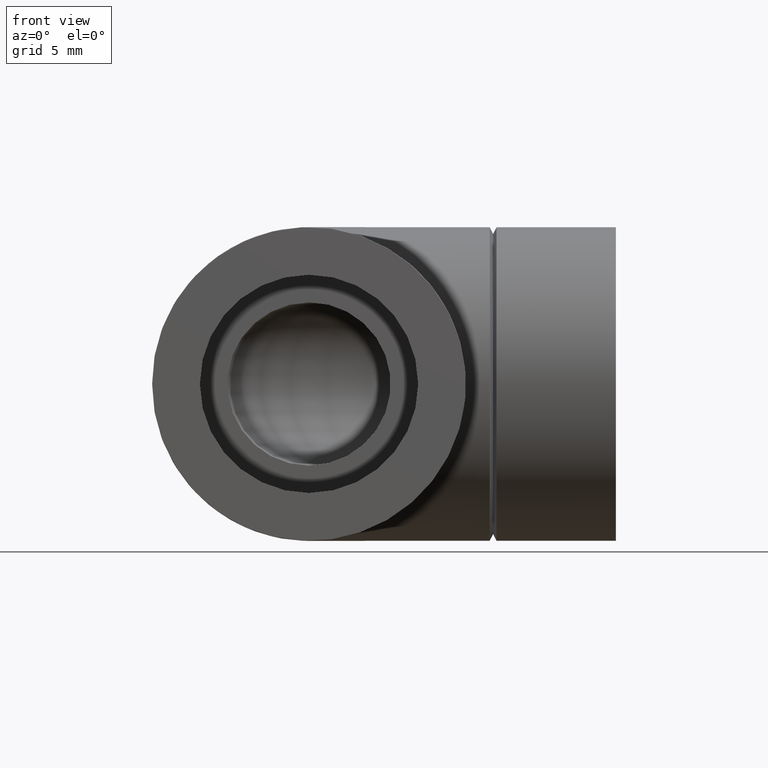
[diagram: clean part render]
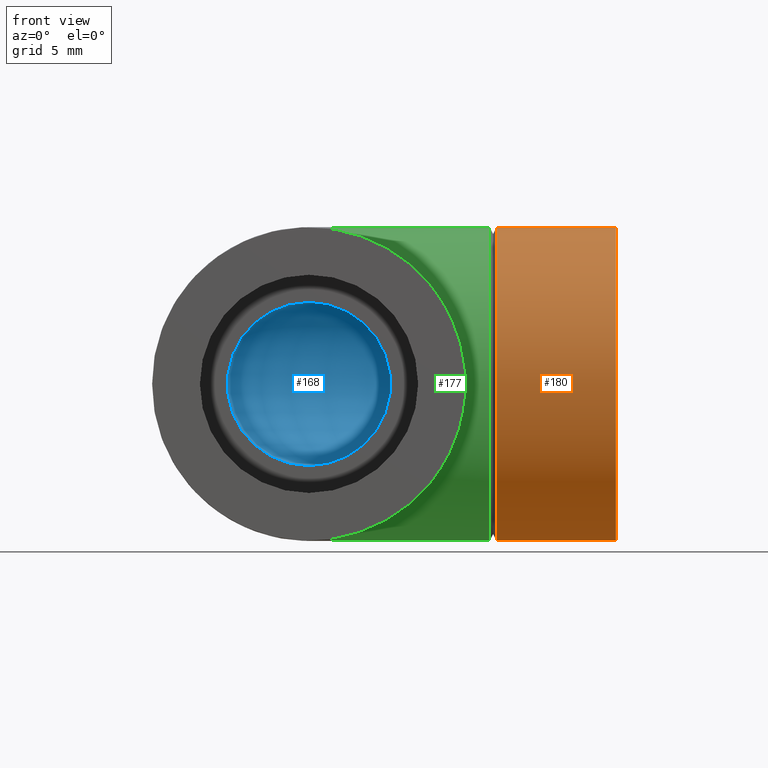
[diagram: same view with three faces highlighted in distinct colors, each labeled with its STEP entity id]
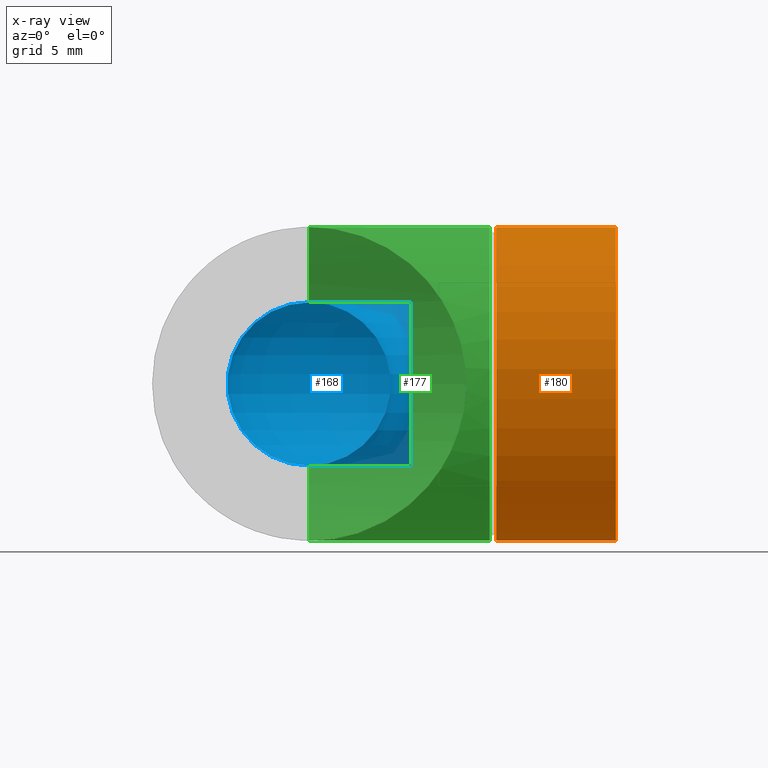
[diagram: x-ray of the same camera — body ghosted, the three highlighted faces saturated]
A machine part, front view with three faces highlighted in distinct colors.
The next image is the same camera in x-ray (body ghosted, the three faces saturated) — at least one of them is partly hidden behind the body in this view.
Their STEP definitions:

[orange] entity #180 — the highlighted cylindrical surface (bore or boss wall) has radius 11.5 mm, axis along (1, 0, 0).
#36=FACE_BOUND('',#79,.T.);
#51=FACE_OUTER_BOUND('',#78,.T.);
#78=EDGE_LOOP('',(#156));
#79=EDGE_LOOP('',(#157));
#95=CIRCLE('',#211,11.5);
#96=CIRCLE('',#213,11.5);
#110=VERTEX_POINT('',#320);
#111=VERTEX_POINT('',#323);
#126=EDGE_CURVE('',#110,#110,#95,.T.);
#127=EDGE_CURVE('',#111,#111,#96,.T.);
#156=ORIENTED_EDGE('',*,*,#126,.T.);
#157=ORIENTED_EDGE('',*,*,#127,.F.);
#166=CYLINDRICAL_SURFACE('',#212,11.5);
#180=ADVANCED_FACE('',(#51,#36),#166,.T.);
#211=AXIS2_PLACEMENT_3D('',#321,#271,#272);
#212=AXIS2_PLACEMENT_3D('',#322,#273,#274);
#213=AXIS2_PLACEMENT_3D('',#324,#275,#276);
#271=DIRECTION('center_axis',(1.,0.,0.));
#272=DIRECTION('ref_axis',(0.,0.,-1.));
#273=DIRECTION('center_axis',(1.,0.,0.));
#274=DIRECTION('ref_axis',(0.,1.,0.));
#275=DIRECTION('center_axis',(1.,0.,0.));
#276=DIRECTION('ref_axis',(0.,0.,-1.));
#320=CARTESIAN_POINT('',(13.75,11.5,0.));
#321=CARTESIAN_POINT('Origin',(13.75,0.,0.));
#322=CARTESIAN_POINT('Origin',(18.125,0.,0.));
#323=CARTESIAN_POINT('',(22.5,11.5,0.));
#324=CARTESIAN_POINT('Origin',(22.5,0.,0.));

[blue] entity #168 — the highlighted toroidal blend (fillet) surface has major radius 7.475 mm and minor (blend) radius 5.98 mm.
#23=TOROIDAL_SURFACE('',#187,7.475,5.98);
#25=FACE_BOUND('',#56,.T.);
#39=FACE_OUTER_BOUND('',#55,.T.);
#55=EDGE_LOOP('',(#130));
#56=EDGE_LOOP('',(#131));
#83=CIRCLE('',#186,5.98);
#84=CIRCLE('',#188,5.98);
#98=VERTEX_POINT('',#283);
#99=VERTEX_POINT('',#286);
#113=EDGE_CURVE('',#98,#98,#83,.T.);
#114=EDGE_CURVE('',#99,#99,#84,.T.);
#130=ORIENTED_EDGE('',*,*,#113,.T.);
#131=ORIENTED_EDGE('',*,*,#114,.F.);
#168=ADVANCED_FACE('',(#39,#25),#23,.F.);
#186=AXIS2_PLACEMENT_3D('',#284,#221,#222);
#187=AXIS2_PLACEMENT_3D('',#285,#223,#224);
#188=AXIS2_PLACEMENT_3D('',#287,#225,#226);
#221=DIRECTION('center_axis',(-6.12323399573677E-17,-1.,0.));
#222=DIRECTION('ref_axis',(0.,0.,1.));
#223=DIRECTION('center_axis',(0.,0.,1.));
#224=DIRECTION('ref_axis',(1.,0.,0.));
#225=DIRECTION('center_axis',(-1.,0.,0.));
#226=DIRECTION('ref_axis',(0.,0.,1.));
#283=CARTESIAN_POINT('',(-7.25017007271379E-16,-7.475,-5.98));
#284=CARTESIAN_POINT('Origin',(7.3217786187381E-18,-7.475,0.));
#285=CARTESIAN_POINT('Origin',(7.475,-7.475,0.));
#286=CARTESIAN_POINT('',(7.475,7.2501700727138E-16,-5.98));
#287=CARTESIAN_POINT('Origin',(7.475,-7.32177861873785E-18,0.));

[green] entity #177 — the highlighted cylindrical surface (bore or boss wall) has radius 11.5 mm, axis along (1, 0, 0).
#17=ELLIPSE('',#204,16.2634559672906,11.5);
#33=FACE_BOUND('',#73,.T.);
#48=FACE_OUTER_BOUND('',#72,.T.);
#72=EDGE_LOOP('',(#149,#150));
#73=EDGE_LOOP('',(#151));
#90=CIRCLE('',#200,11.5);
#93=CIRCLE('',#207,11.5);
#105=VERTEX_POINT('',#304);
#106=VERTEX_POINT('',#305);
#108=VERTEX_POINT('',#314);
#120=EDGE_CURVE('',#105,#106,#90,.T.);
#123=EDGE_CURVE('',#106,#105,#17,.T.);
#124=EDGE_CURVE('',#108,#108,#93,.T.);
#149=ORIENTED_EDGE('',*,*,#123,.T.);
#150=ORIENTED_EDGE('',*,*,#120,.T.);
#151=ORIENTED_EDGE('',*,*,#124,.F.);
#165=CYLINDRICAL_SURFACE('',#206,11.5);
#177=ADVANCED_FACE('',(#48,#33),#165,.T.);
#200=AXIS2_PLACEMENT_3D('',#306,#249,#250);
#204=AXIS2_PLACEMENT_3D('',#311,#257,#258);
#206=AXIS2_PLACEMENT_3D('',#313,#261,#262);
#207=AXIS2_PLACEMENT_3D('',#315,#263,#264);
#249=DIRECTION('center_axis',(1.,0.,0.));
#250=DIRECTION('ref_axis',(0.,0.,-1.));
#257=DIRECTION('center_axis',(0.707106781186547,0.707106781186548,0.));
#258=DIRECTION('ref_axis',(-0.707106781186548,0.707106781186547,0.));
#261=DIRECTION('center_axis',(1.,0.,0.));
#262=DIRECTION('ref_axis',(0.,1.,0.));
#263=DIRECTION('center_axis',(1.,0.,0.));
#264=DIRECTION('ref_axis',(0.,0.,-1.));
#304=CARTESIAN_POINT('',(0.,-8.62361875030568E-32,-11.5));
#305=CARTESIAN_POINT('',(0.,-8.62361875030568E-32,11.5));
#306=CARTESIAN_POINT('Origin',(0.,0.,0.));
#311=CARTESIAN_POINT('Origin',(0.,0.,0.));
#313=CARTESIAN_POINT('Origin',(6.625,0.,0.));
#314=CARTESIAN_POINT('',(13.25,11.5,0.));
#315=CARTESIAN_POINT('Origin',(13.25,0.,0.));